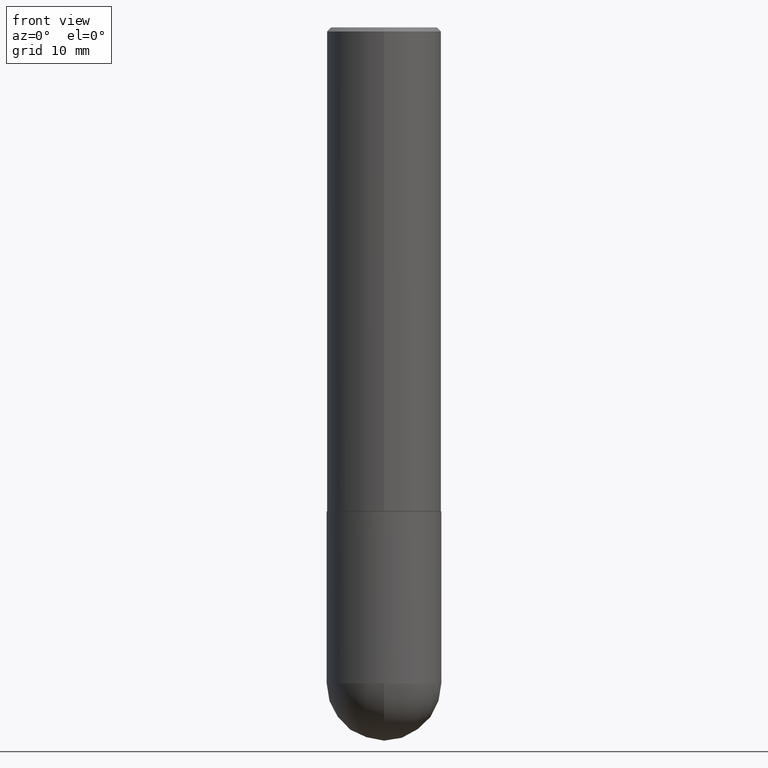
[diagram: clean part render]
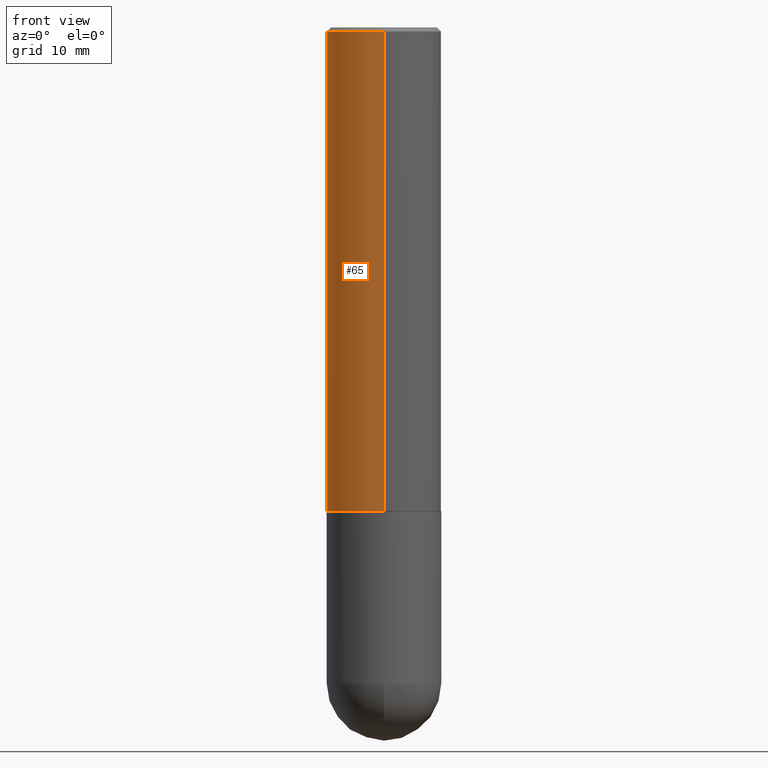
[diagram: same view with one face highlighted and labeled with its STEP entity id]
A machine part, front view. The second image highlights one B-rep face of the part: STEP entity #65.
In plain terms, the highlighted cylindrical surface (partial cylindrical patch) has radius 7.1438 mm, axis along (-0, 0, 1).
Its self-contained STEP definition (entity closure, byte-faithful):
#3 = VECTOR ( 'NONE', #8, 39.37007874015748143 ) ;
#7 = ORIENTED_EDGE ( 'NONE', *, *, #64, .F. ) ;
#8 = DIRECTION ( 'NONE',  ( -2.445561105913636168E-29, 3.491349160378560520E-15, 1.000000000000000000 ) ) ;
#9 = CARTESIAN_POINT ( 'NONE',  ( -1.929515061873242463E-15, -0.2812500000000000555, -0.01999999999999908101 ) ) ;
#13 = VECTOR ( 'NONE', #126, 39.37007874015748143 ) ;
#16 = VERTEX_POINT ( 'NONE', #9 ) ;
#38 = CARTESIAN_POINT ( 'NONE',  ( 0.000000000000000000, 0.000000000000000000, 0.000000000000000000 ) ) ;
#43 = CARTESIAN_POINT ( 'NONE',  ( -1.963958253099263301E-15, -0.2812500000000001110, 9.819419513564705654E-16 ) ) ;
#46 = DIRECTION ( 'NONE',  ( -2.445561105913635888E-29, 3.491349160378560520E-15, 1.000000000000000000 ) ) ;
#64 = EDGE_CURVE ( 'NONE', #138, #16, #369, .T. ) ;
#65 = ADVANCED_FACE ( 'NONE', ( #308 ), #373, .T. ) ;
#70 = ORIENTED_EDGE ( 'NONE', *, *, #366, .T. ) ;
#126 = DIRECTION ( 'NONE',  ( -2.445561105913636168E-29, 3.491349160378560520E-15, 1.000000000000000000 ) ) ;
#128 = CARTESIAN_POINT ( 'NONE',  ( 1.998401444325282167E-15, 0.2812500000000001110, -9.819419513564705654E-16 ) ) ;
#138 = VERTEX_POINT ( 'NONE', #311 ) ;
#152 = LINE ( 'NONE', #128, #13 ) ;
#156 = VERTEX_POINT ( 'NONE', #411 ) ;
#157 = DIRECTION ( 'NONE',  ( -6.982962677686265133E-15, -1.000000000000000000, 3.885294924322504533E-15 ) ) ;
#178 = AXIS2_PLACEMENT_3D ( 'NONE', #321, #46, #157 ) ;
#197 = EDGE_LOOP ( 'NONE', ( #349, #70, #320, #7 ) ) ;
#210 = DIRECTION ( 'NONE',  ( -6.982962677686266711E-15, -1.000000000000000000, 3.491349160378560520E-15 ) ) ;
#236 = CIRCLE ( 'NONE', #178, 0.2812500000000002220 ) ;
#255 = DIRECTION ( 'NONE',  ( -2.445561105913635888E-29, 3.491349160378560520E-15, 1.000000000000000000 ) ) ;
#282 = EDGE_CURVE ( 'NONE', #156, #138, #152, .T. ) ;
#308 = FACE_OUTER_BOUND ( 'NONE', #197, .T. ) ;
#311 = CARTESIAN_POINT ( 'NONE',  ( 1.963958253099262907E-15, 0.2812499999999999445, -0.02000000000000104472 ) ) ;
#315 = DIRECTION ( 'NONE',  ( -6.982962677686266711E-15, -1.000000000000000000, 3.490694658571002804E-15 ) ) ;
#317 = AXIS2_PLACEMENT_3D ( 'NONE', #38, #255, #210 ) ;
#320 = ORIENTED_EDGE ( 'NONE', *, *, #384, .T. ) ;
#321 = CARTESIAN_POINT ( 'NONE',  ( 5.805762065438970283E-29, -8.288462906738701557E-15, -2.373999999999999666 ) ) ;
#322 = VERTEX_POINT ( 'NONE', #341 ) ;
#323 = AXIS2_PLACEMENT_3D ( 'NONE', #375, #412, #315 ) ;
#341 = CARTESIAN_POINT ( 'NONE',  ( -1.963958253099205714E-15, -0.2812500000000085487, -2.373999999999998334 ) ) ;
#349 = ORIENTED_EDGE ( 'NONE', *, *, #282, .F. ) ;
#350 = LINE ( 'NONE', #43, #3 ) ;
#366 = EDGE_CURVE ( 'NONE', #156, #322, #236, .T. ) ;
#369 = CIRCLE ( 'NONE', #323, 0.2812500000000000000 ) ;
#373 = CYLINDRICAL_SURFACE ( 'NONE', #317, 0.2812500000000001110 ) ;
#375 = CARTESIAN_POINT ( 'NONE',  ( 4.891122211827287681E-31, -6.982698320757142044E-17, -0.02000000000000006287 ) ) ;
#384 = EDGE_CURVE ( 'NONE', #322, #16, #350, .T. ) ;
#411 = CARTESIAN_POINT ( 'NONE',  ( 1.998401444325312144E-15, 0.2812499999999919509, -2.374000000000000554 ) ) ;
#412 = DIRECTION ( 'NONE',  ( -2.445561105913635888E-29, 3.491349160378560520E-15, 1.000000000000000000 ) ) ;